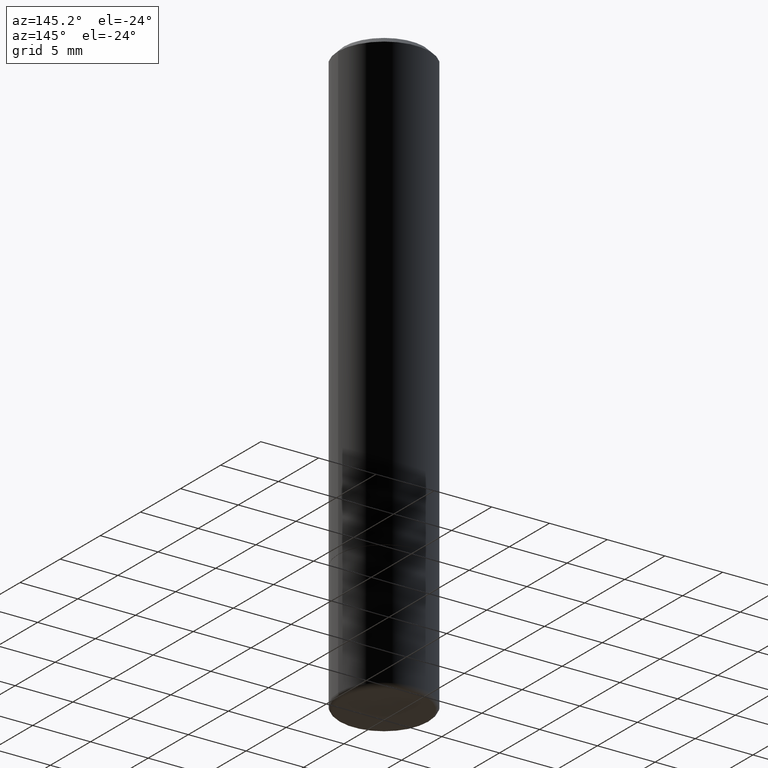
[diagram: clean part render]
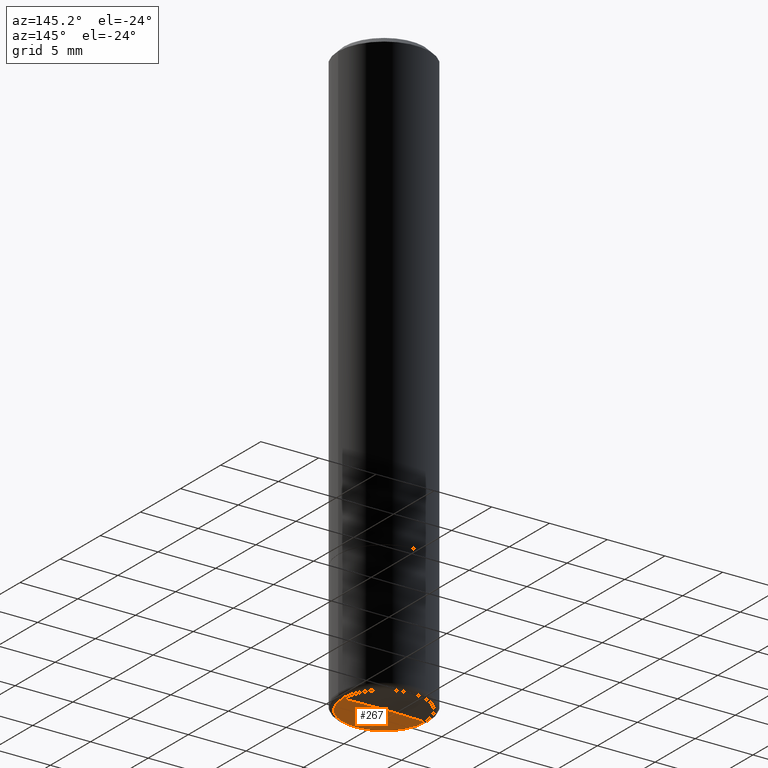
[diagram: same view with one face highlighted and labeled with its STEP entity id]
A machine part, auxiliary view. The second image highlights one B-rep face of the part: STEP entity #267.
In plain terms, the highlighted conical surface has half-angle 89 deg.
Its self-contained STEP definition (entity closure, byte-faithful):
#14 = ORIENTED_EDGE ( 'NONE', *, *, #31, .T. ) ;
#26 = DIRECTION ( 'NONE',  ( 2.445468806185136597E-29, -3.491481338843145583E-15, -1.000000000000000000 ) ) ;
#31 = EDGE_CURVE ( 'NONE', #388, #302, #280, .T. ) ;
#35 = CARTESIAN_POINT ( 'NONE',  ( 2.106344187118886594E-18, -6.974362310717180636E-15, -1.997536756999549024 ) ) ;
#66 = DIRECTION ( 'NONE',  ( -2.445468806185136597E-29, 3.491481338843145583E-15, 1.000000000000000000 ) ) ;
#121 = AXIS2_PLACEMENT_3D ( 'NONE', #412, #66, #133 ) ;
#133 = DIRECTION ( 'NONE',  ( 1.000000000000000000, -6.982962677686267499E-15, 0.000000000000000000 ) ) ;
#143 = CARTESIAN_POINT ( 'NONE',  ( -0.1409882139034411841, -5.998439265462124813E-15, -1.999997715427345835 ) ) ;
#152 = CONICAL_SURFACE ( 'NONE', #436, 2255.510300424564321, 1.553343034274960788 ) ;
#160 = VERTEX_POINT ( 'NONE', #143 ) ;
#187 = EDGE_LOOP ( 'NONE', ( #192, #14, #416 ) ) ;
#190 = VECTOR ( 'NONE', #418, 39.37007874015747433 ) ;
#192 = ORIENTED_EDGE ( 'NONE', *, *, #252, .F. ) ;
#194 = EDGE_CURVE ( 'NONE', #160, #302, #300, .T. ) ;
#207 = DIRECTION ( 'NONE',  ( -1.000000000000000000, 6.982962677686266711E-15, 0.000000000000000000 ) ) ;
#214 = LINE ( 'NONE', #271, #190 ) ;
#244 = CARTESIAN_POINT ( 'NONE',  ( 1.011632132845583691E-27, -1.444342575407622888E-13, -41.36761549715703268 ) ) ;
#252 = EDGE_CURVE ( 'NONE', #388, #160, #214, .T. ) ;
#267 = ADVANCED_FACE ( 'NONE', ( #353 ), #152, .F. ) ;
#271 = CARTESIAN_POINT ( 'NONE',  ( -2.106344187021188405E-18, -6.974362310717180636E-15, -1.997536756999549024 ) ) ;
#280 = LINE ( 'NONE', #35, #402 ) ;
#300 = CIRCLE ( 'NONE', #121, 0.1409882139034408788 ) ;
#302 = VERTEX_POINT ( 'NONE', #391 ) ;
#353 = FACE_OUTER_BOUND ( 'NONE', #187, .T. ) ;
#388 = VERTEX_POINT ( 'NONE', #423 ) ;
#391 = CARTESIAN_POINT ( 'NONE',  ( 0.1409882139034411841, -7.950204060337446048E-15, -1.999997715427345835 ) ) ;
#402 = VECTOR ( 'NONE', #420, 39.37007874015747433 ) ;
#412 = CARTESIAN_POINT ( 'NONE',  ( 4.890932025519112354E-29, -6.982954701143501552E-15, -1.999997715427345835 ) ) ;
#416 = ORIENTED_EDGE ( 'NONE', *, *, #194, .F. ) ;
#418 = DIRECTION ( 'NONE',  ( -0.9998476951563914916, 6.920964387254063099E-15, -0.01745240643727605234 ) ) ;
#420 = DIRECTION ( 'NONE',  ( 0.9998476951563914916, -6.920387862090559512E-15, -0.01745240643727605234 ) ) ;
#423 = CARTESIAN_POINT ( 'NONE',  ( 4.886384680735083264E-29, -6.972255966530111052E-15, -1.997536756999549024 ) ) ;
#436 = AXIS2_PLACEMENT_3D ( 'NONE', #244, #26, #207 ) ;